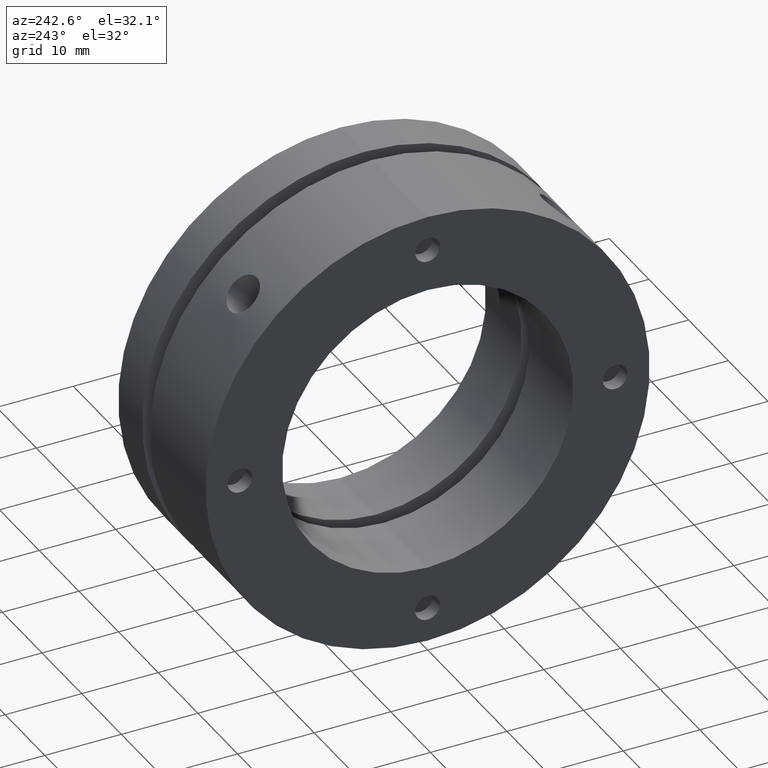
[diagram: clean part render]
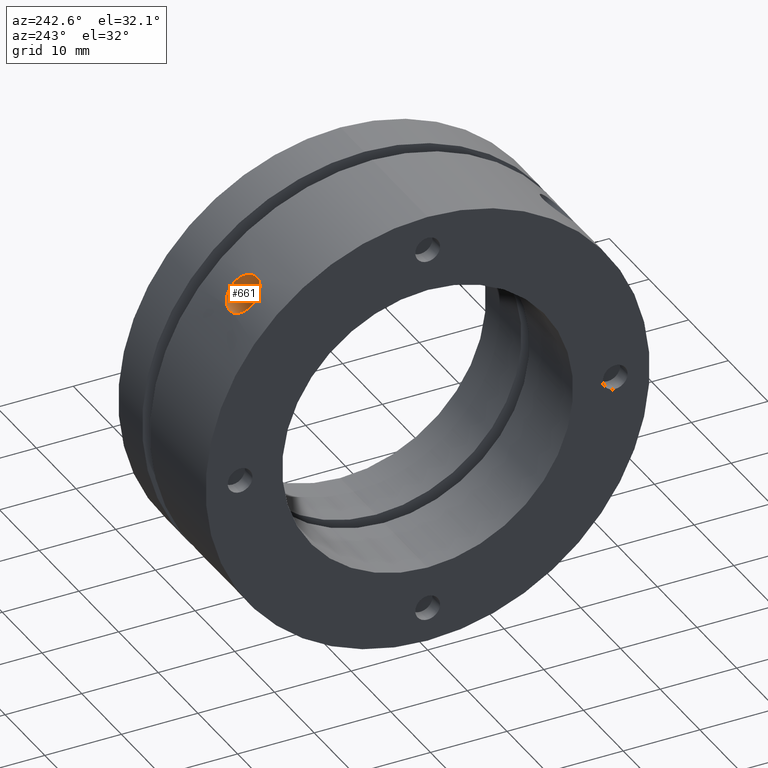
[diagram: same view with one face highlighted and labeled with its STEP entity id]
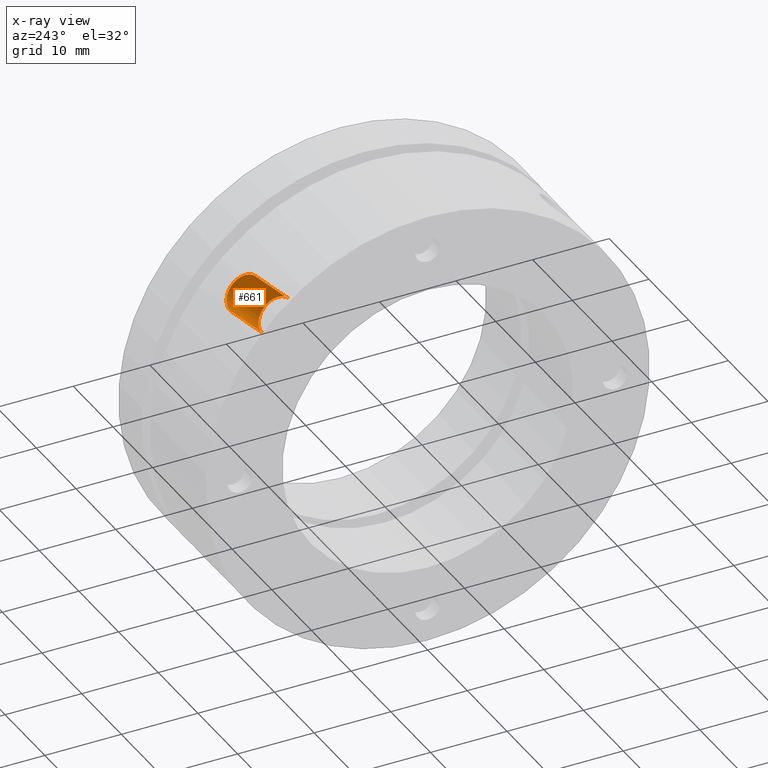
[diagram: x-ray of the same camera — body ghosted, the highlighted face saturated]
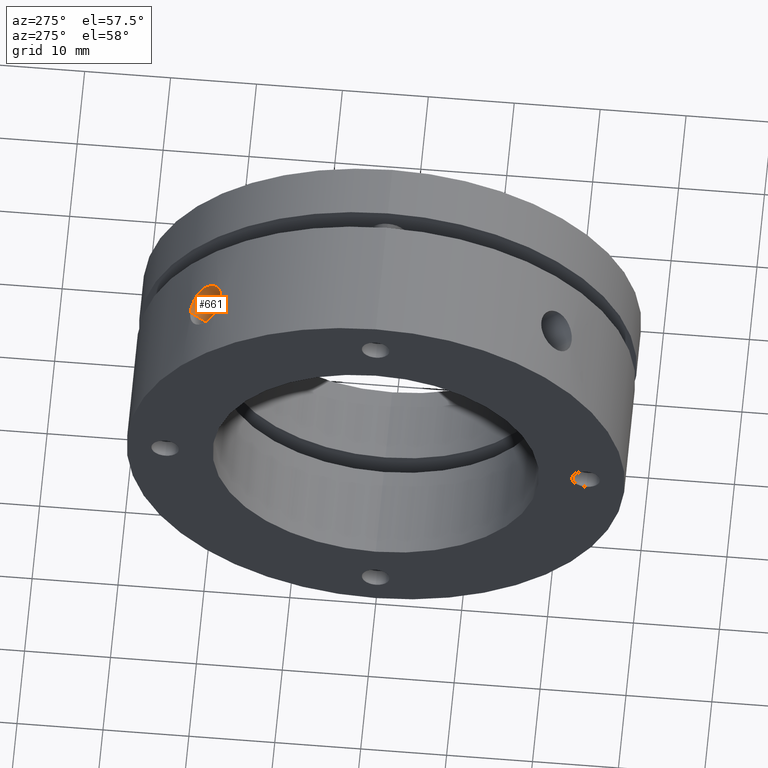
[diagram: same view with one face highlighted and labeled with its STEP entity id]
A machine part, auxiliary view. The second image highlights one B-rep face of the part: STEP entity #661.
The next image is the same camera in x-ray: the body ghosted, the highlighted face saturated — about 0% of this face is hidden behind the body in this view.
A second angle (auxiliary view) of the same face is appended — the face is thin or edge-on in the first view.
In plain terms, the highlighted cylindrical surface (edge-blend (fillet) strip) has radius 2.5 mm, axis along (0, 0.7071, 0.7071).
Its self-contained STEP definition (entity closure, byte-faithful):
#366 = ORIENTED_EDGE ( 'NONE', *, *, #3419, .F. ) ;
#369 = ORIENTED_EDGE ( 'NONE', *, *, #862, .F. ) ;
#373 = ORIENTED_EDGE ( 'NONE', *, *, #859, .F. ) ;
#374 = ORIENTED_EDGE ( 'NONE', *, *, #3420, .T. ) ;
#661 = ADVANCED_FACE ( 'NONE', ( #1459 ), #1471, .F. ) ;
#804 = AXIS2_PLACEMENT_3D ( 'NONE', #1955, #1953, #1951 ) ;
#830 = AXIS2_PLACEMENT_3D ( 'NONE', #2115, #2116, #2117 ) ;
#859 = EDGE_CURVE ( 'NONE', #1201, #1210, #1646, .T. ) ;
#862 = EDGE_CURVE ( 'NONE', #1206, #1194, #1530, .T. ) ;
#992 = LINE ( 'NONE', #2545, #996 ) ;
#993 = LINE ( 'NONE', #2544, #998 ) ;
#996 = VECTOR ( 'NONE', #2550, 1000.000000000000000 ) ;
#998 = VECTOR ( 'NONE', #2552, 1000.000000000000000 ) ;
#1194 = VERTEX_POINT ( 'NONE', #2273 ) ;
#1201 = VERTEX_POINT ( 'NONE', #2280 ) ;
#1206 = VERTEX_POINT ( 'NONE', #2285 ) ;
#1210 = VERTEX_POINT ( 'NONE', #2289 ) ;
#1259 = EDGE_LOOP ( 'NONE', ( #366, #369, #374, #373 ) ) ;
#1459 = FACE_OUTER_BOUND ( 'NONE', #1259, .T. ) ;
#1471 = CYLINDRICAL_SURFACE ( 'NONE', #804, 2.499999999999998700 ) ;
#1530 = CIRCLE ( 'NONE', #830, 2.500000000000000000 ) ;
#1646 = B_SPLINE_CURVE_WITH_KNOTS ( 'NONE', 3,
 ( #2075, #2070, #2071, #2076, #2077, #2078, #2079, #2080, #2081, #2082, #2083, #2084, #2085, #2086, #2087, #2088, #2089, #2090, #2091, #2092, #2093, #2094, #2095, #2096, #2097, #2098, #2099, #2100, #2101, #2102, #2103, #2104, #2105, #2106 ),
 .UNSPECIFIED., .F., .F.,
 ( 4, 2, 2, 2, 2, 2, 2, 2, 2, 2, 2, 2, 2, 2, 2, 2, 4 ),
 ( 0.003910783848401363200, 0.004399413537173201300, 0.004888043225945040400, 0.005376672914716881100, 0.005865302603488721900, 0.006353932292260562600, 0.006842561981032403400, 0.007331191669804244100, 0.007819821358576086600, 0.008308451047347925600, 0.008797080736119768100, 0.009285710424891608800, 0.009774340113663449600, 0.01026296980243529200, 0.01075159949120713100, 0.01124022917997897500, 0.01172885886875082000 ),
 .UNSPECIFIED. ) ;
#1951 = DIRECTION ( 'NONE',  ( 0.0000000000000000000, -0.7071067811865468000, 0.7071067811865482400 ) ) ;
#1953 = DIRECTION ( 'NONE',  ( 0.0000000000000000000, 0.7071067811865480200, 0.7071067811865470200 ) ) ;
#1955 = CARTESIAN_POINT ( 'NONE',  ( 6.999999999999992900, 18.38477631085023800, 18.38477631085023500 ) ) ;
#2070 = CARTESIAN_POINT ( 'NONE',  ( 7.163110954909309500, 22.19752466078073300, 18.66199075484798800 ) ) ;
#2071 = CARTESIAN_POINT ( 'NONE',  ( 7.328791089934384200, 22.18698604690868200, 18.67454631854177500 ) ) ;
#2075 = CARTESIAN_POINT ( 'NONE',  ( 6.999999999999992900, 22.19752466078072900, 18.66199075484798400 ) ) ;
#2076 = CARTESIAN_POINT ( 'NONE',  ( 7.649398740487888500, 22.14559740782088000, 18.72360930749730900 ) ) ;
#2077 = CARTESIAN_POINT ( 'NONE',  ( 7.805234892621212100, 22.11497315728584900, 18.75984850724459800 ) ) ;
#2078 = CARTESIAN_POINT ( 'NONE',  ( 8.107924566968145900, 22.03341391034282300, 18.85557278943687700 ) ) ;
#2079 = CARTESIAN_POINT ( 'NONE',  ( 8.254171002879294500, 21.98232622904115600, 18.91522050272665100 ) ) ;
#2080 = CARTESIAN_POINT ( 'NONE',  ( 8.524894842937687400, 21.86353145396199000, 19.05240734050099900 ) ) ;
#2081 = CARTESIAN_POINT ( 'NONE',  ( 8.651102712503501400, 21.79542124658690800, 19.13042814526029300 ) ) ;
#2082 = CARTESIAN_POINT ( 'NONE',  ( 8.884484225384289500, 21.64046908597384400, 19.30553718693549900 ) ) ;
#2083 = CARTESIAN_POINT ( 'NONE',  ( 8.987865394785846000, 21.55612589309481200, 19.39978856227068200 ) ) ;
#2084 = CARTESIAN_POINT ( 'NONE',  ( 9.168824333069506900, 21.37390333452956500, 19.60037285425833200 ) ) ;
#2085 = CARTESIAN_POINT ( 'NONE',  ( 9.247078799891678400, 21.27482539859592600, 19.70798702155400800 ) ) ;
#2086 = CARTESIAN_POINT ( 'NONE',  ( 9.372476817786655100, 21.06777376682278200, 19.92917099862554400 ) ) ;
#2087 = CARTESIAN_POINT ( 'NONE',  ( 9.419736255052415100, 20.96038223865167900, 20.04215693526426600 ) ) ;
#2088 = CARTESIAN_POINT ( 'NONE',  ( 9.483657853192907400, 20.73761668369855100, 20.27256600650579400 ) ) ;
#2089 = CARTESIAN_POINT ( 'NONE',  ( 9.500116828457468200, 20.62166606313038700, 20.39054148882278000 ) ) ;
#2090 = CARTESIAN_POINT ( 'NONE',  ( 9.499881907783503700, 20.38801344745415600, 20.62416546416109100 ) ) ;
#2091 = CARTESIAN_POINT ( 'NONE',  ( 9.483551465865751600, 20.27215207472594100, 20.73801785504051800 ) ) ;
#2092 = CARTESIAN_POINT ( 'NONE',  ( 9.419792068213675800, 20.04238859372669900, 20.96015729318005300 ) ) ;
#2093 = CARTESIAN_POINT ( 'NONE',  ( 9.371581518802322800, 19.92726399046937400, 21.06957673019084600 ) ) ;
#2094 = CARTESIAN_POINT ( 'NONE',  ( 9.245892671011118200, 19.70622817327488700, 21.27645376744169400 ) ) ;
#2095 = CARTESIAN_POINT ( 'NONE',  ( 9.169015707227634600, 19.60056664924231400, 21.37372842538444200 ) ) ;
#2096 = CARTESIAN_POINT ( 'NONE',  ( 8.987432254802950400, 19.39932680590989400, 21.55654423257545500 ) ) ;
#2097 = CARTESIAN_POINT ( 'NONE',  ( 8.881819506822875400, 19.30341492832802800, 21.64235393242091400 ) ) ;
#2098 = CARTESIAN_POINT ( 'NONE',  ( 8.651164854266376400, 19.13059905319686000, 21.79526305180085900 ) ) ;
#2099 = CARTESIAN_POINT ( 'NONE',  ( 8.525304735573518800, 19.05255138129913900, 21.86340924704134600 ) ) ;
#2100 = CARTESIAN_POINT ( 'NONE',  ( 8.251951343062524200, 18.91415980189287200, 21.98324218647277900 ) ) ;
#2101 = CARTESIAN_POINT ( 'NONE',  ( 8.106544136692129100, 18.85511040750020200, 22.03380839699892800 ) ) ;
#2102 = CARTESIAN_POINT ( 'NONE',  ( 7.805717435693329900, 18.76002701349492700, 22.11482053754050600 ) ) ;
#2103 = CARTESIAN_POINT ( 'NONE',  ( 7.648071496905436600, 18.72328252472629700, 22.14587376021934900 ) ) ;
#2104 = CARTESIAN_POINT ( 'NONE',  ( 7.325355955965575200, 18.67414614753104700, 22.18732292920768900 ) ) ;
#2105 = CARTESIAN_POINT ( 'NONE',  ( 7.163110706795888100, 18.66199075484799200, 22.19752466078072200 ) ) ;
#2106 = CARTESIAN_POINT ( 'NONE',  ( 6.999999999999992900, 18.66199075484799200, 22.19752466078072200 ) ) ;
#2115 = CARTESIAN_POINT ( 'NONE',  ( 6.999999999999992900, 16.26345596729059300, 16.26345596729059300 ) ) ;
#2116 = DIRECTION ( 'NONE',  ( 0.0000000000000000000, 0.7071067811865480200, 0.7071067811865470200 ) ) ;
#2117 = DIRECTION ( 'NONE',  ( 0.0000000000000000000, -0.7071067811865471300, 0.7071067811865477900 ) ) ;
#2273 = CARTESIAN_POINT ( 'NONE',  ( 6.999999999999992900, 18.03122291790289800, 14.49568901667828800 ) ) ;
#2280 = CARTESIAN_POINT ( 'NONE',  ( 6.999999999999992900, 22.19752466078072900, 18.66199075484798400 ) ) ;
#2285 = CARTESIAN_POINT ( 'NONE',  ( 6.999999999999992900, 14.49568901667829700, 18.03122291790289500 ) ) ;
#2289 = CARTESIAN_POINT ( 'NONE',  ( 6.999999999999992900, 18.66199075484799200, 22.19752466078072200 ) ) ;
#2544 = CARTESIAN_POINT ( 'NONE',  ( 6.999999999999992900, 16.61700935788387300, 20.15254326381660700 ) ) ;
#2545 = CARTESIAN_POINT ( 'NONE',  ( 6.999999999999992900, 20.15254326381660700, 16.61700935788386600 ) ) ;
#2550 = DIRECTION ( 'NONE',  ( 0.0000000000000000000, 0.7071067811865480200, 0.7071067811865470200 ) ) ;
#2552 = DIRECTION ( 'NONE',  ( 0.0000000000000000000, 0.7071067811865480200, 0.7071067811865470200 ) ) ;
#3419 = EDGE_CURVE ( 'NONE', #1194, #1201, #992, .T. ) ;
#3420 = EDGE_CURVE ( 'NONE', #1206, #1210, #993, .T. ) ;